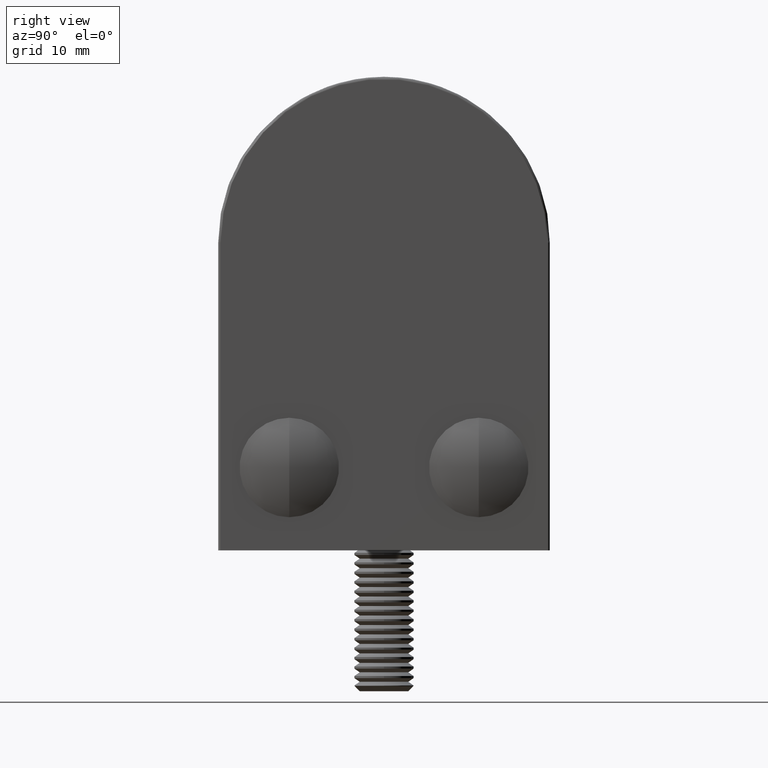
[diagram: clean part render]
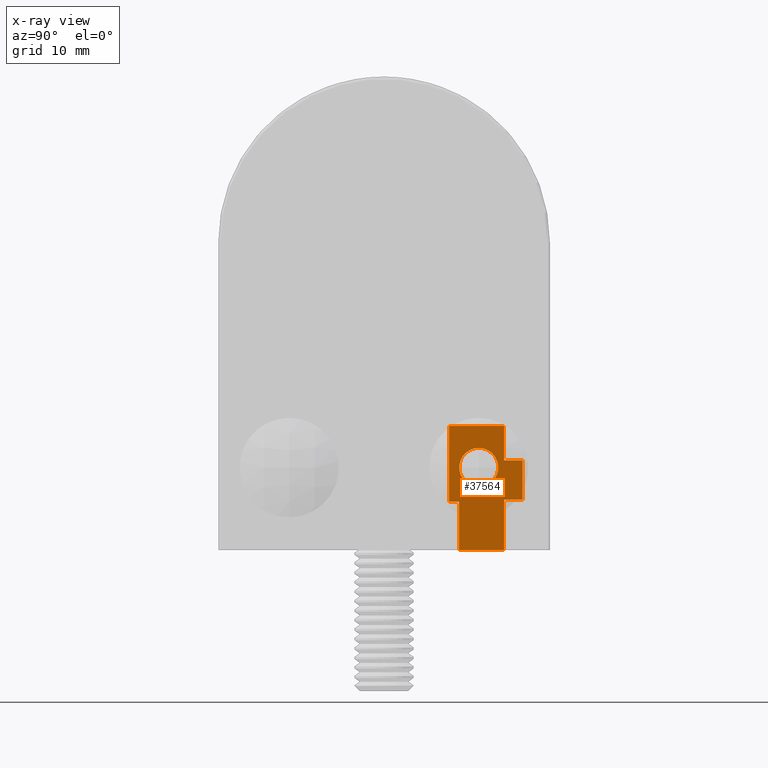
[diagram: x-ray — body ghosted, one internal face saturated and labeled with its STEP entity id]
A machine part, right view, then the same camera in x-ray: the body is ghosted and one INTERNAL B-rep face — a face not visible from any outside direction — is saturated and labeled: STEP entity #37564.
In plain terms, the highlighted planar face has unit normal (1, 0, 0).
Its self-contained STEP definition (entity closure, byte-faithful):
#13 = CARTESIAN_POINT ( 'NONE',  ( 13.29999999999999900, 6.350000000000008500, -1.914145517036476900E-015 ) ) ;
#131 = VERTEX_POINT ( 'NONE', #50326 ) ;
#1923 = EDGE_CURVE ( 'NONE', #45114, #13821, #29568, .T. ) ;
#1966 = VECTOR ( 'NONE', #43978, 1000.000000000000000 ) ;
#2956 = VECTOR ( 'NONE', #42930, 1000.000000000000000 ) ;
#3366 = DIRECTION ( 'NONE',  ( 0.0000000000000000000, 1.000000000000000000, 1.667627088515426900E-017 ) ) ;
#4008 = ORIENTED_EDGE ( 'NONE', *, *, #49277, .F. ) ;
#4497 = VECTOR ( 'NONE', #30116, 1000.000000000000000 ) ;
#5082 = VERTEX_POINT ( 'NONE', #19751 ) ;
#5464 = ORIENTED_EDGE ( 'NONE', *, *, #35180, .T. ) ;
#5939 = EDGE_CURVE ( 'NONE', #131, #10517, #38152, .T. ) ;
#7214 = ORIENTED_EDGE ( 'NONE', *, *, #51652, .T. ) ;
#7555 = CARTESIAN_POINT ( 'NONE',  ( 13.29999999999999900, 10.14999999999999900, 7.599999999999997000 ) ) ;
#7689 = VERTEX_POINT ( 'NONE', #13116 ) ;
#8904 = VECTOR ( 'NONE', #21470, 1000.000000000000000 ) ;
#8961 = ORIENTED_EDGE ( 'NONE', *, *, #22748, .T. ) ;
#9354 = EDGE_CURVE ( 'NONE', #10517, #30769, #44224, .T. ) ;
#9436 = CARTESIAN_POINT ( 'NONE',  ( 13.29999999999999900, 8.000000000000000000, 6.999999999999997300 ) ) ;
#9688 = CARTESIAN_POINT ( 'NONE',  ( 13.29999999999999900, 5.499999999999999100, 4.099999999999997000 ) ) ;
#9986 = VECTOR ( 'NONE', #3366, 1000.000000000000000 ) ;
#10450 = PLANE ( 'NONE',  #37628 ) ;
#10468 = CARTESIAN_POINT ( 'NONE',  ( 13.29999999999999900, 5.499999999999998200, 4.099999999999993400 ) ) ;
#10517 = VERTEX_POINT ( 'NONE', #7555 ) ;
#10959 = CIRCLE ( 'NONE', #21277, 1.649999999999998600 ) ;
#12161 = CARTESIAN_POINT ( 'NONE',  ( 13.29999999999999900, 8.000000000000000000, 8.649999999999996800 ) ) ;
#12625 = CARTESIAN_POINT ( 'NONE',  ( 13.29999999999999900, 5.499999999999999100, 10.49999999999999600 ) ) ;
#13116 = CARTESIAN_POINT ( 'NONE',  ( 13.29999999999999900, 5.499999999999999100, 10.49999999999999600 ) ) ;
#13313 = LINE ( 'NONE', #48209, #1966 ) ;
#13571 = EDGE_CURVE ( 'NONE', #30769, #7689, #25756, .T. ) ;
#13736 = LINE ( 'NONE', #12625, #23149 ) ;
#13763 = VECTOR ( 'NONE', #18336, 1000.000000000000000 ) ;
#13821 = VERTEX_POINT ( 'NONE', #14239 ) ;
#13872 = ORIENTED_EDGE ( 'NONE', *, *, #51244, .T. ) ;
#14239 = CARTESIAN_POINT ( 'NONE',  ( 13.29999999999999900, 10.14999999999999900, -1.850775687672890800E-015 ) ) ;
#14343 = CARTESIAN_POINT ( 'NONE',  ( 13.29999999999999900, 6.349999999999997900, 4.099999999999993400 ) ) ;
#14387 = CARTESIAN_POINT ( 'NONE',  ( 13.29999999999999900, 10.14999999999999900, 7.599999999999997000 ) ) ;
#14521 = LINE ( 'NONE', #9688, #8904 ) ;
#15179 = VERTEX_POINT ( 'NONE', #52190 ) ;
#15243 = VERTEX_POINT ( 'NONE', #32108 ) ;
#15374 = DIRECTION ( 'NONE',  ( -0.0000000000000000000, -0.0000000000000000000, 1.000000000000000000 ) ) ;
#15569 = EDGE_CURVE ( 'NONE', #22743, #15243, #30074, .T. ) ;
#15627 = DIRECTION ( 'NONE',  ( 1.000000000000000000, -0.0000000000000000000, 0.0000000000000000000 ) ) ;
#17100 = LINE ( 'NONE', #37112, #39182 ) ;
#17248 = FACE_OUTER_BOUND ( 'NONE', #20272, .T. ) ;
#17394 = CARTESIAN_POINT ( 'NONE',  ( 13.29999999999999900, 10.14999999999999900, 10.49999999999999600 ) ) ;
#18336 = DIRECTION ( 'NONE',  ( 0.0000000000000000000, -1.000000000000000000, 0.0000000000000000000 ) ) ;
#18716 = LINE ( 'NONE', #51358, #2956 ) ;
#18734 = CARTESIAN_POINT ( 'NONE',  ( 13.29999999999999900, 6.350000000000008500, -1.914145517036476900E-015 ) ) ;
#18786 = DIRECTION ( 'NONE',  ( -0.0000000000000000000, -1.000000000000000000, -0.0000000000000000000 ) ) ;
#19135 = VERTEX_POINT ( 'NONE', #14343 ) ;
#19634 = EDGE_CURVE ( 'NONE', #39951, #15179, #10959, .T. ) ;
#19751 = CARTESIAN_POINT ( 'NONE',  ( 13.29999999999999900, 6.349999999999997900, 1.599999999999995400 ) ) ;
#19774 = EDGE_LOOP ( 'NONE', ( #4008, #43743 ) ) ;
#20272 = EDGE_LOOP ( 'NONE', ( #8961, #20379, #41907, #13872, #46298, #5464, #28799, #21169, #35322, #30786, #7214 ) ) ;
#20379 = ORIENTED_EDGE ( 'NONE', *, *, #27462, .T. ) ;
#21169 = ORIENTED_EDGE ( 'NONE', *, *, #9354, .T. ) ;
#21277 = AXIS2_PLACEMENT_3D ( 'NONE', #46565, #34396, #38109 ) ;
#21470 = DIRECTION ( 'NONE',  ( 0.0000000000000000000, 1.000000000000000000, -4.081702296416020700E-015 ) ) ;
#21892 = CARTESIAN_POINT ( 'NONE',  ( 13.29999999999999900, 10.14999999999999900, 10.49999999999999600 ) ) ;
#22428 = EDGE_CURVE ( 'NONE', #7689, #34389, #13736, .T. ) ;
#22743 = VERTEX_POINT ( 'NONE', #35486 ) ;
#22748 = EDGE_CURVE ( 'NONE', #19135, #5082, #18716, .T. ) ;
#23149 = VECTOR ( 'NONE', #45082, 1000.000000000000000 ) ;
#24694 = CIRCLE ( 'NONE', #44887, 1.649999999999998600 ) ;
#25756 = LINE ( 'NONE', #26659, #13763 ) ;
#26659 = CARTESIAN_POINT ( 'NONE',  ( 13.29999999999999900, 10.14999999999999900, 10.49999999999999600 ) ) ;
#27420 = VECTOR ( 'NONE', #18786, 1000.000000000000000 ) ;
#27462 = EDGE_CURVE ( 'NONE', #5082, #45114, #13313, .T. ) ;
#28341 = DIRECTION ( 'NONE',  ( 0.0000000000000000000, 0.0000000000000000000, -1.000000000000000000 ) ) ;
#28799 = ORIENTED_EDGE ( 'NONE', *, *, #5939, .T. ) ;
#29568 = LINE ( 'NONE', #13, #9986 ) ;
#30074 = LINE ( 'NONE', #33623, #38884 ) ;
#30116 = DIRECTION ( 'NONE',  ( -0.0000000000000000000, -0.0000000000000000000, 1.000000000000000000 ) ) ;
#30769 = VERTEX_POINT ( 'NONE', #21892 ) ;
#30786 = ORIENTED_EDGE ( 'NONE', *, *, #22428, .T. ) ;
#32108 = CARTESIAN_POINT ( 'NONE',  ( 13.29999999999999900, 11.70000000000000300, 4.299999999999996300 ) ) ;
#32241 = CARTESIAN_POINT ( 'NONE',  ( 13.29999999999999900, 0.0000000000000000000, 0.0000000000000000000 ) ) ;
#32912 = DIRECTION ( 'NONE',  ( 0.0000000000000000000, 0.0000000000000000000, -1.000000000000000000 ) ) ;
#33623 = CARTESIAN_POINT ( 'NONE',  ( 13.29999999999999900, 11.70000000000000300, 4.299999999999996300 ) ) ;
#34389 = VERTEX_POINT ( 'NONE', #10468 ) ;
#34396 = DIRECTION ( 'NONE',  ( 1.000000000000000000, -0.0000000000000000000, -0.0000000000000000000 ) ) ;
#34922 = FACE_BOUND ( 'NONE', #19774, .T. ) ;
#35180 = EDGE_CURVE ( 'NONE', #15243, #131, #38662, .T. ) ;
#35322 = ORIENTED_EDGE ( 'NONE', *, *, #13571, .T. ) ;
#35486 = CARTESIAN_POINT ( 'NONE',  ( 13.29999999999999900, 10.14999999999999900, 4.299999999999996300 ) ) ;
#37112 = CARTESIAN_POINT ( 'NONE',  ( 13.29999999999999900, 10.14999999999999900, 4.299999999999996300 ) ) ;
#37406 = VECTOR ( 'NONE', #15374, 1000.000000000000000 ) ;
#37564 = ADVANCED_FACE ( 'NONE', ( #34922, #17248 ), #10450, .T. ) ;
#37628 = AXIS2_PLACEMENT_3D ( 'NONE', #32241, #15627, #28341 ) ;
#38109 = DIRECTION ( 'NONE',  ( 0.0000000000000000000, 0.0000000000000000000, -1.000000000000000000 ) ) ;
#38152 = LINE ( 'NONE', #14387, #27420 ) ;
#38662 = LINE ( 'NONE', #46297, #37406 ) ;
#38884 = VECTOR ( 'NONE', #49661, 1000.000000000000000 ) ;
#39182 = VECTOR ( 'NONE', #45394, 1000.000000000000000 ) ;
#39951 = VERTEX_POINT ( 'NONE', #12161 ) ;
#41907 = ORIENTED_EDGE ( 'NONE', *, *, #1923, .T. ) ;
#42930 = DIRECTION ( 'NONE',  ( 0.0000000000000000000, 2.538619720941671800E-015, -1.000000000000000000 ) ) ;
#43743 = ORIENTED_EDGE ( 'NONE', *, *, #19634, .F. ) ;
#43978 = DIRECTION ( 'NONE',  ( 0.0000000000000000000, 2.538619720941671800E-015, -1.000000000000000000 ) ) ;
#44224 = LINE ( 'NONE', #17394, #4497 ) ;
#44887 = AXIS2_PLACEMENT_3D ( 'NONE', #9436, #45586, #32912 ) ;
#45082 = DIRECTION ( 'NONE',  ( 0.0000000000000000000, 0.0000000000000000000, -1.000000000000000000 ) ) ;
#45114 = VERTEX_POINT ( 'NONE', #18734 ) ;
#45394 = DIRECTION ( 'NONE',  ( -0.0000000000000000000, -0.0000000000000000000, 1.000000000000000000 ) ) ;
#45586 = DIRECTION ( 'NONE',  ( 1.000000000000000000, -0.0000000000000000000, -0.0000000000000000000 ) ) ;
#46297 = CARTESIAN_POINT ( 'NONE',  ( 13.29999999999999900, 11.70000000000000300, 7.599999999999997000 ) ) ;
#46298 = ORIENTED_EDGE ( 'NONE', *, *, #15569, .T. ) ;
#46565 = CARTESIAN_POINT ( 'NONE',  ( 13.29999999999999900, 8.000000000000000000, 6.999999999999997300 ) ) ;
#48209 = CARTESIAN_POINT ( 'NONE',  ( 13.29999999999999900, 6.349999999999997900, 4.099999999999993400 ) ) ;
#49277 = EDGE_CURVE ( 'NONE', #15179, #39951, #24694, .T. ) ;
#49661 = DIRECTION ( 'NONE',  ( -0.0000000000000000000, 1.000000000000000000, -0.0000000000000000000 ) ) ;
#50326 = CARTESIAN_POINT ( 'NONE',  ( 13.29999999999999900, 11.70000000000000300, 7.599999999999997000 ) ) ;
#51244 = EDGE_CURVE ( 'NONE', #13821, #22743, #17100, .T. ) ;
#51358 = CARTESIAN_POINT ( 'NONE',  ( 13.29999999999999900, 6.349999999999997900, 4.099999999999993400 ) ) ;
#51652 = EDGE_CURVE ( 'NONE', #34389, #19135, #14521, .T. ) ;
#52190 = CARTESIAN_POINT ( 'NONE',  ( 13.29999999999999900, 8.000000000000000000, 5.349999999999998800 ) ) ;